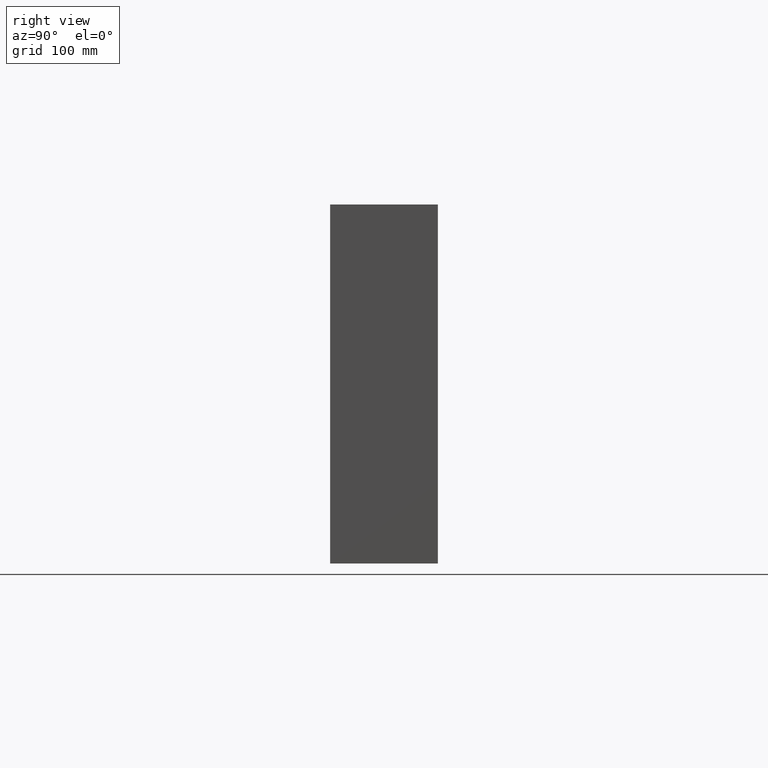
[diagram: clean part render]
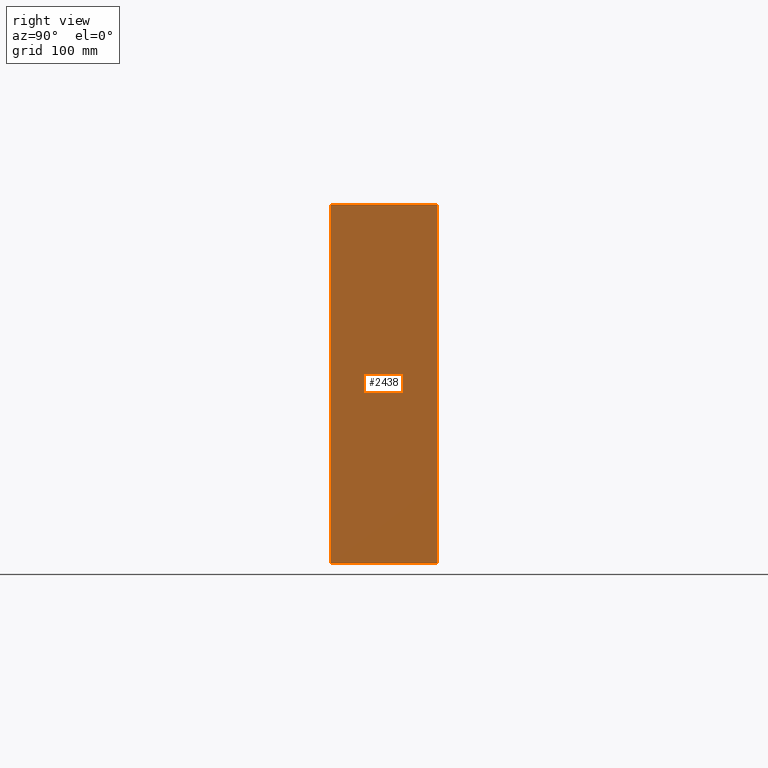
[diagram: same view with one face highlighted and labeled with its STEP entity id]
A machine part, right view. The second image highlights one B-rep face of the part: STEP entity #2438.
In plain terms, the highlighted planar face has unit normal (-1, 0, -0).
Its self-contained STEP definition (entity closure, byte-faithful):
#91 = CARTESIAN_POINT ( 'NONE',  ( 350.0000000000014200, 59.99999999999921800, -1.776356839400250500E-012 ) ) ;
#246 = CARTESIAN_POINT ( 'NONE',  ( 350.0000000000014200, 119.9999999999992200, 199.9999999999992900 ) ) ;
#459 = DIRECTION ( 'NONE',  ( -0.0000000000000000000, -1.000000000000000000, 1.836970198721029700E-016 ) ) ;
#478 = CARTESIAN_POINT ( 'NONE',  ( 350.0000000000014200, -7.563394355258878900E-013, 199.9999999999992900 ) ) ;
#499 = VECTOR ( 'NONE', #721, 1000.000000000000000 ) ;
#650 = CARTESIAN_POINT ( 'NONE',  ( 350.0000000000014200, 119.9999999999991900, -200.0000000000010800 ) ) ;
#680 = FACE_OUTER_BOUND ( 'NONE', #3322, .T. ) ;
#699 = CARTESIAN_POINT ( 'NONE',  ( 350.0000000000014200, 119.9999999999991900, -1.776356839400250500E-012 ) ) ;
#721 = DIRECTION ( 'NONE',  ( -0.0000000000000000000, -0.0000000000000000000, -1.000000000000000000 ) ) ;
#785 = DIRECTION ( 'NONE',  ( 0.0000000000000000000, -1.836970198721029700E-016, -1.000000000000000000 ) ) ;
#815 = LINE ( 'NONE', #699, #2131 ) ;
#876 = DIRECTION ( 'NONE',  ( 0.0000000000000000000, 1.000000000000000000, -1.836970198721029700E-016 ) ) ;
#965 = DIRECTION ( 'NONE',  ( 0.0000000000000000000, 1.000000000000000000, -1.836970198721029700E-016 ) ) ;
#1172 = VERTEX_POINT ( 'NONE', #478 ) ;
#1222 = CARTESIAN_POINT ( 'NONE',  ( 350.0000000000014200, -7.840950111415168100E-013, -200.0000000000010800 ) ) ;
#1386 = EDGE_CURVE ( 'NONE', #3066, #1571, #2647, .T. ) ;
#1412 = EDGE_CURVE ( 'NONE', #2669, #3066, #815, .T. ) ;
#1469 = EDGE_CURVE ( 'NONE', #1172, #2669, #3290, .T. ) ;
#1571 = VERTEX_POINT ( 'NONE', #1222 ) ;
#1642 = CARTESIAN_POINT ( 'NONE',  ( 350.0000000000014200, 59.99999999999918300, -200.0000000000010800 ) ) ;
#1781 = EDGE_CURVE ( 'NONE', #1172, #1571, #1910, .T. ) ;
#1817 = ORIENTED_EDGE ( 'NONE', *, *, #1781, .T. ) ;
#1878 = ORIENTED_EDGE ( 'NONE', *, *, #1386, .F. ) ;
#1910 = LINE ( 'NONE', #2126, #499 ) ;
#2126 = CARTESIAN_POINT ( 'NONE',  ( 350.0000000000014200, -7.840950111415168100E-013, -1.776356839400250500E-012 ) ) ;
#2131 = VECTOR ( 'NONE', #785, 1000.000000000000000 ) ;
#2438 = ADVANCED_FACE ( 'NONE', ( #680 ), #2717, .F. ) ;
#2467 = ORIENTED_EDGE ( 'NONE', *, *, #1469, .F. ) ;
#2498 = ORIENTED_EDGE ( 'NONE', *, *, #1412, .F. ) ;
#2647 = LINE ( 'NONE', #1642, #2891 ) ;
#2669 = VERTEX_POINT ( 'NONE', #246 ) ;
#2717 = PLANE ( 'NONE',  #2973 ) ;
#2759 = DIRECTION ( 'NONE',  ( -1.000000000000000000, 0.0000000000000000000, -0.0000000000000000000 ) ) ;
#2818 = VECTOR ( 'NONE', #965, 1000.000000000000000 ) ;
#2891 = VECTOR ( 'NONE', #459, 1000.000000000000000 ) ;
#2973 = AXIS2_PLACEMENT_3D ( 'NONE', #91, #2759, #876 ) ;
#3066 = VERTEX_POINT ( 'NONE', #650 ) ;
#3156 = CARTESIAN_POINT ( 'NONE',  ( 350.0000000000014200, 59.99999999999926100, 199.9999999999992900 ) ) ;
#3290 = LINE ( 'NONE', #3156, #2818 ) ;
#3322 = EDGE_LOOP ( 'NONE', ( #1817, #1878, #2498, #2467 ) ) ;